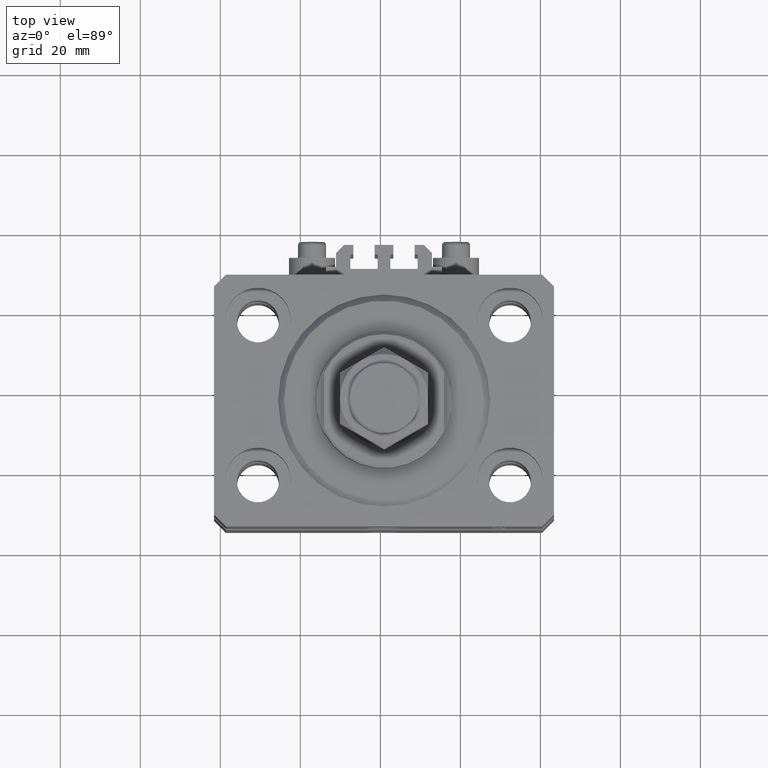
[diagram: clean part render]
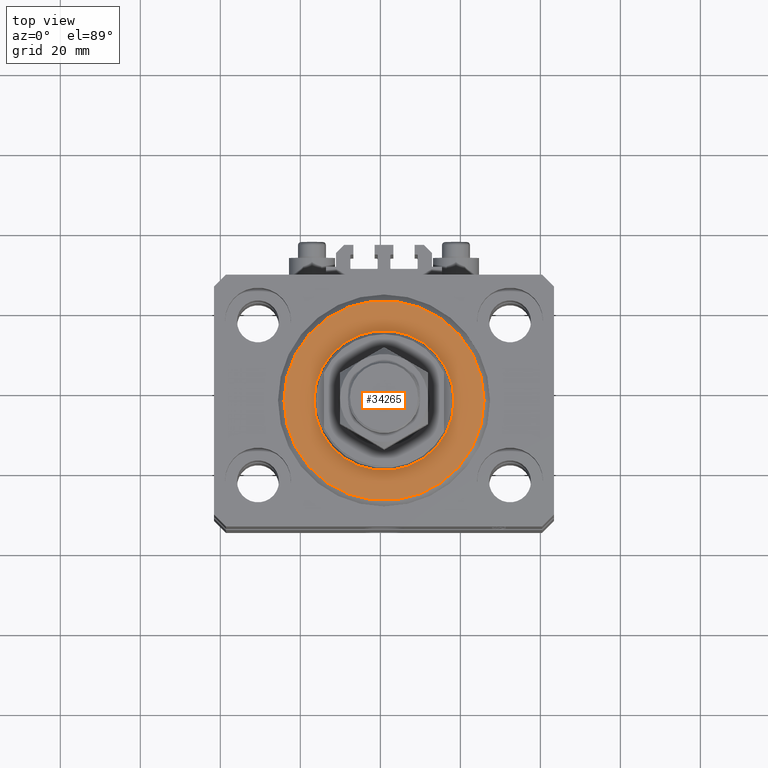
[diagram: same view with one face highlighted and labeled with its STEP entity id]
A machine part, top view. The second image highlights one B-rep face of the part: STEP entity #34265.
In plain terms, the highlighted planar face has unit normal (0, 0, -1).
Its self-contained STEP definition (entity closure, byte-faithful):
#1332 = VERTEX_POINT ( 'NONE', #32457 ) ;
#2408 = VERTEX_POINT ( 'NONE', #48638 ) ;
#3002 = CIRCLE ( 'NONE', #41998, 24.99999999999998224 ) ;
#4235 = CARTESIAN_POINT ( 'NONE',  ( 0.000000000000000000, 0.000000000000000000, 0.000000000000000000 ) ) ;
#4335 = CARTESIAN_POINT ( 'NONE',  ( 0.000000000000000000, 0.000000000000000000, 0.000000000000000000 ) ) ;
#4926 = AXIS2_PLACEMENT_3D ( 'NONE', #4235, #15171, #13085 ) ;
#6855 = EDGE_LOOP ( 'NONE', ( #35445, #37036 ) ) ;
#8050 = FACE_OUTER_BOUND ( 'NONE', #6855, .T. ) ;
#8097 = AXIS2_PLACEMENT_3D ( 'NONE', #38314, #43050, #19638 ) ;
#11616 = ORIENTED_EDGE ( 'NONE', *, *, #27013, .T. ) ;
#12483 = CIRCLE ( 'NONE', #49071, 17.50000000000000000 ) ;
#13085 = DIRECTION ( 'NONE',  ( 1.000000000000000000, 0.000000000000000000, 0.000000000000000000 ) ) ;
#13123 = EDGE_CURVE ( 'NONE', #1332, #36874, #47850, .T. ) ;
#13273 = DIRECTION ( 'NONE',  ( 0.000000000000000000, 0.000000000000000000, 1.000000000000000000 ) ) ;
#15171 = DIRECTION ( 'NONE',  ( 0.000000000000000000, 0.000000000000000000, 1.000000000000000000 ) ) ;
#19509 = DIRECTION ( 'NONE',  ( 0.000000000000000000, 0.000000000000000000, 1.000000000000000000 ) ) ;
#19638 = DIRECTION ( 'NONE',  ( 1.000000000000000000, 0.000000000000000000, 0.000000000000000000 ) ) ;
#25361 = CARTESIAN_POINT ( 'NONE',  ( -17.50000000000000000, 2.143131898507868643E-15, 2.168404344971008868E-16 ) ) ;
#27013 = EDGE_CURVE ( 'NONE', #36874, #1332, #12483, .T. ) ;
#27453 = DIRECTION ( 'NONE',  ( 1.000000000000000000, 0.000000000000000000, 0.000000000000000000 ) ) ;
#28006 = CIRCLE ( 'NONE', #8097, 24.99999999999998224 ) ;
#28183 = CARTESIAN_POINT ( 'NONE',  ( 0.000000000000000000, 0.000000000000000000, 0.000000000000000000 ) ) ;
#28471 = DIRECTION ( 'NONE',  ( 1.000000000000000000, 0.000000000000000000, 0.000000000000000000 ) ) ;
#29694 = EDGE_CURVE ( 'NONE', #2408, #42444, #3002, .T. ) ;
#30707 = FACE_BOUND ( 'NONE', #48178, .T. ) ;
#31434 = DIRECTION ( 'NONE',  ( -0.000000000000000000, -0.000000000000000000, -1.000000000000000000 ) ) ;
#32457 = CARTESIAN_POINT ( 'NONE',  ( 17.50000000000000000, 0.000000000000000000, 2.168404344971008868E-16 ) ) ;
#32941 = ORIENTED_EDGE ( 'NONE', *, *, #13123, .T. ) ;
#34265 = ADVANCED_FACE ( 'NONE', ( #30707, #8050 ), #38431, .F. ) ;
#34696 = DIRECTION ( 'NONE',  ( 1.000000000000000000, 0.000000000000000000, -0.000000000000000000 ) ) ;
#35445 = ORIENTED_EDGE ( 'NONE', *, *, #46259, .T. ) ;
#36874 = VERTEX_POINT ( 'NONE', #25361 ) ;
#37036 = ORIENTED_EDGE ( 'NONE', *, *, #29694, .T. ) ;
#38314 = CARTESIAN_POINT ( 'NONE',  ( 0.000000000000000000, 0.000000000000000000, 0.000000000000000000 ) ) ;
#38431 = PLANE ( 'NONE',  #46013 ) ;
#38644 = CARTESIAN_POINT ( 'NONE',  ( 24.99999999999998224, 0.000000000000000000, 0.000000000000000000 ) ) ;
#41998 = AXIS2_PLACEMENT_3D ( 'NONE', #28183, #31434, #27453 ) ;
#42444 = VERTEX_POINT ( 'NONE', #38644 ) ;
#43050 = DIRECTION ( 'NONE',  ( -0.000000000000000000, -0.000000000000000000, -1.000000000000000000 ) ) ;
#46013 = AXIS2_PLACEMENT_3D ( 'NONE', #4335, #19509, #34696 ) ;
#46259 = EDGE_CURVE ( 'NONE', #42444, #2408, #28006, .T. ) ;
#47395 = CARTESIAN_POINT ( 'NONE',  ( 0.000000000000000000, 0.000000000000000000, 0.000000000000000000 ) ) ;
#47850 = CIRCLE ( 'NONE', #4926, 17.50000000000000000 ) ;
#48178 = EDGE_LOOP ( 'NONE', ( #32941, #11616 ) ) ;
#48638 = CARTESIAN_POINT ( 'NONE',  ( -24.99999999999998224, 3.153465507804433615E-15, 0.000000000000000000 ) ) ;
#49071 = AXIS2_PLACEMENT_3D ( 'NONE', #47395, #13273, #28471 ) ;